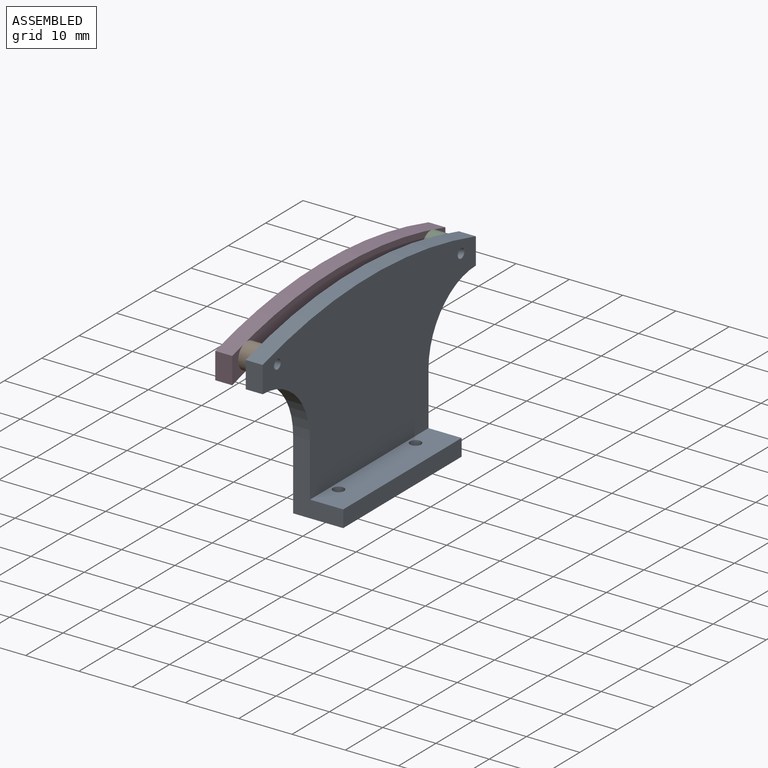
[diagram: assembled view]
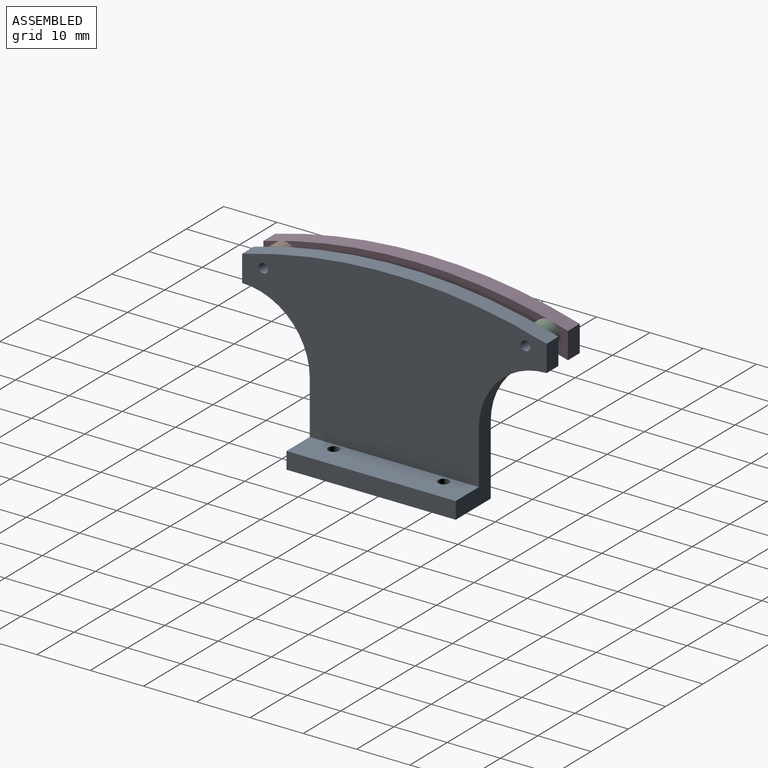
[diagram: assembled view, second angle]
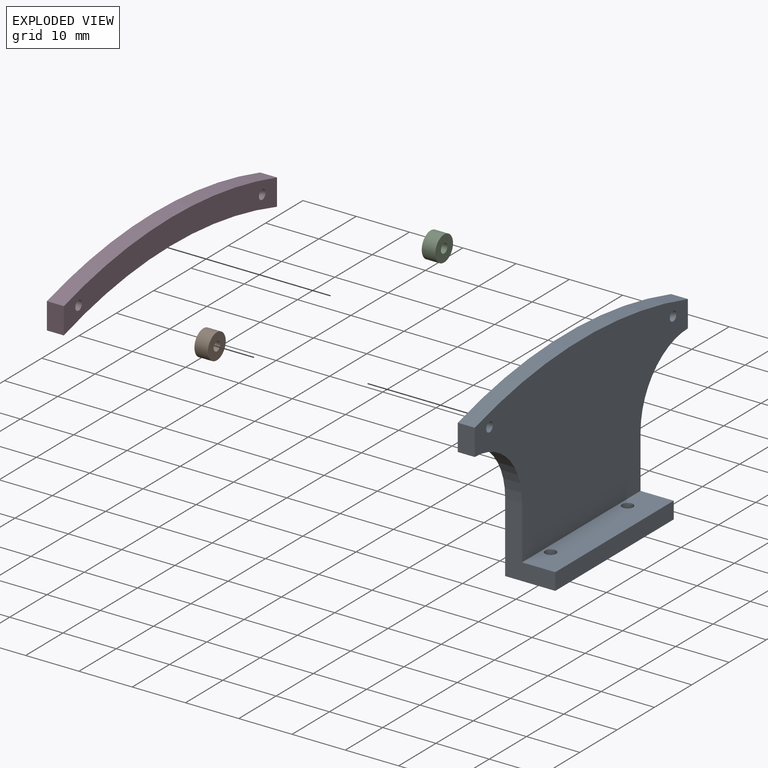
[diagram: exploded view]
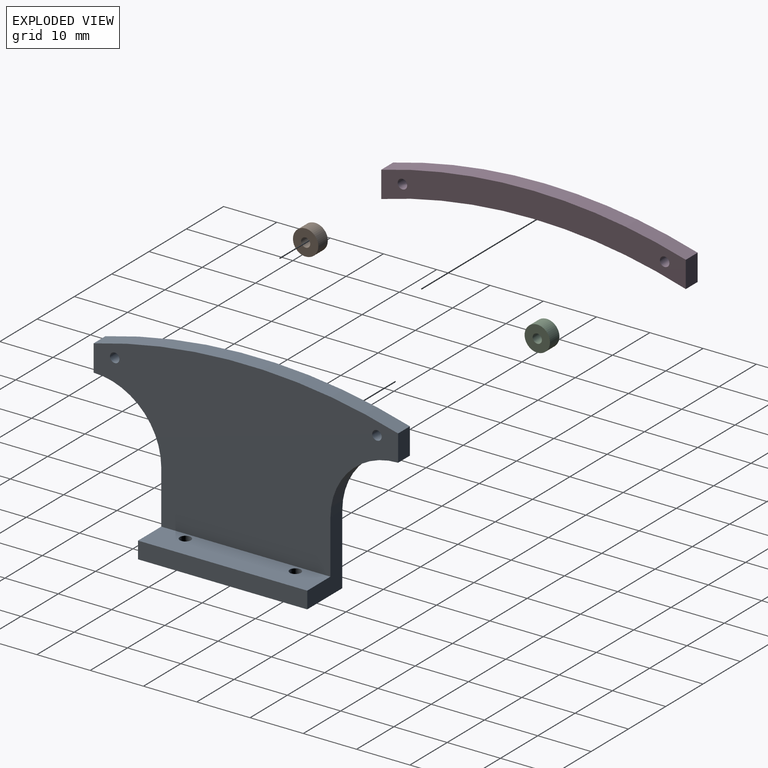
[diagram: exploded view, second angle]
ASSEMBLY  parts=4 mates=3
PART A: 16 faces, bbox 9.4x57.2x34.9 mm
  f0: plane 57.15x31.75mm, normal (1,0,0), area 1224.9mm2, adj f1,f2,f4,f5,f6,f7,f8,f10
  f1: cylinder r=12.7mm len=12.7mm, axis (-1,0,0), area 63.3mm2, adj f0,f2,f8,f9
  f2: plane 13.2x9.4mm, normal (0,-1,0), area 61.7mm2, adj f0,f1,f3,f9,f10,f11
  f3: plane 31.75x9.4mm, normal (0,0,-1), area 291.6mm2, adj f2,f4,f9,f11,f14,f15
  f4: plane 13.2x9.4mm, normal (0,1,0), area 61.7mm2, adj f0,f3,f5,f9,f10,f11
  f5: cylinder r=12.7mm len=12.7mm, axis (-1,0,0), area 63.3mm2, adj f0,f4,f6,f9
  f6: plane 4.97x3.18mm, normal (0,1,0), area 15.8mm2, adj f0,f5,f7,f9
  f7: cylinder r=102.57mm len=57.15mm, axis (-1,0,0), area 183.9mm2, adj f0,f6,f8,f9
  f8: plane 4.97x3.18mm, normal (0,-1,0), area 15.8mm2, adj f0,f1,f7,f9
  f9: plane 57.15x34.93mm, normal (-1,0,0), area 1325.8mm2, adj f1,f2,f3,f4,f5,f6,f7,f8
  f10: plane 31.75x6.22mm, normal (0,0,1), area 190.8mm2, adj f0,f2,f4,f11,f14,f15
  f11: plane 31.75x3.18mm, normal (1,0,0), area 100.8mm2, adj f2,f3,f4,f10
  f12: cylinder r=0.89mm len=3.18mm, axis (-1,0,0), area 17.7mm2, adj f0,f9
  f13: cylinder r=0.89mm len=3.18mm, axis (-1,0,0), area 17.7mm2, adj f0,f9
  f14: cylinder r=1.04mm len=3.18mm, axis (0,0,-1), area 20.8mm2, adj f3,f10
  f15: cylinder r=1.04mm len=3.18mm, axis (0,0,-1), area 20.8mm2, adj f3,f10
PART B: 4 faces, bbox 2.5x4.8x4.8 mm
  f0: cylinder r=0.86mm len=2.54mm, axis (-1,0,0), area 13.8mm2, adj f2,f3
  f1: cylinder r=2.38mm len=4.76mm, axis (-1,0,0), area 38mm2, adj f2,f3
  f2: plane 4.76x4.76mm, normal (1,0,0), area 15.5mm2, adj f0,f1
  f3: plane 4.76x4.76mm, normal (-1,0,0), area 15.5mm2, adj f0,f1
PART C: same geometry as B
PART D: 8 faces, bbox 3.2x57.2x9 mm
  f0: plane 4.97x3.18mm, normal (0,-1,0), area 15.8mm2, adj f1,f3,f4,f5
  f1: cylinder r=97.81mm len=57.15mm, axis (-1,0,0), area 184.1mm2, adj f0,f2,f4,f5
  f2: plane 4.97x3.18mm, normal (0,1,0), area 15.8mm2, adj f1,f3,f4,f5
  f3: cylinder r=102.57mm len=57.15mm, axis (-1,0,0), area 183.9mm2, adj f0,f2,f4,f5
  f4: plane 57.15x9.03mm, normal (1,0,0), area 271mm2, adj f0,f1,f2,f3,f6,f7
  f5: plane 57.15x9.03mm, normal (-1,0,0), area 271mm2, adj f0,f1,f2,f3,f6,f7
  f6: cylinder r=0.89mm len=3.18mm, axis (-1,0,0), area 17.7mm2, adj f4,f5
  f7: cylinder r=0.89mm len=3.18mm, axis (-1,0,0), area 17.7mm2, adj f4,f5
PLACE A t=(-4.7,0,-67.65)mm
PLACE B t=(-5.97,-24.61,29.47)mm
PLACE C t=(-5.97,24.61,29.47)mm
PLACE D t=(-10.42,0,-67.65)mm
MATE fastened A.f13 <-> B.f1  axis (-1,0,0) through (-4.7,-24.61,29.47)mm
MATE fastened C.f1 <-> D.f6  axis (-1,0,0) through (-7.24,24.61,29.47)mm
MATE fastened C.f1 <-> A.f12  axis (1,0,0) through (-4.7,24.61,29.47)mm
